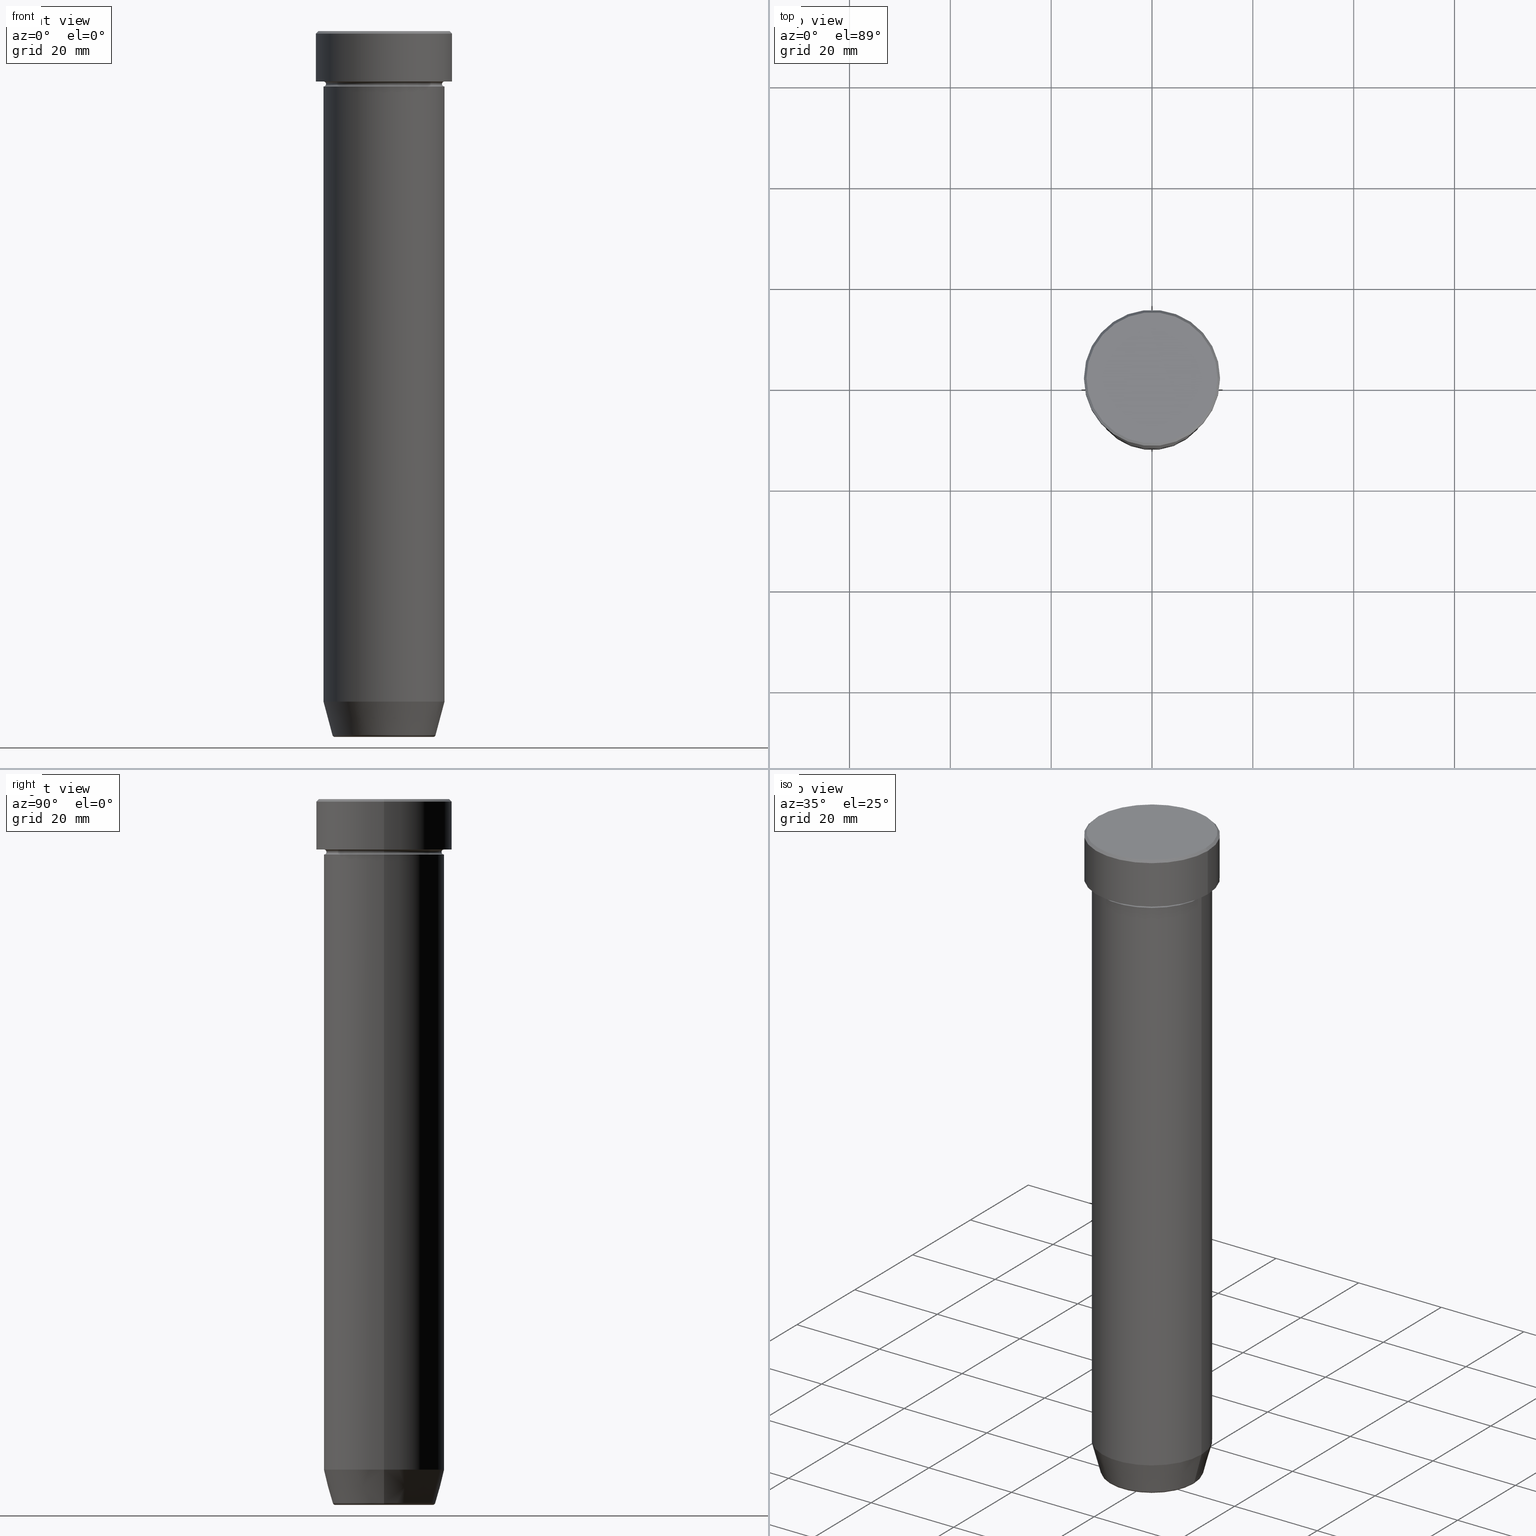
[diagram: canonical four-view strip — front | top / right | iso, engineering-drawing reading convention]
A machine part, canonical four-view strip (front | top / right | iso — engineering-drawing reading convention). The complete STEP part file that produces these views, byte-faithful:
ISO-10303-21;
HEADER;
FILE_DESCRIPTION (( 'STEP AP203' ),
    '1' );
FILE_NAME ('3ad3.STEP',
    '2024-01-02T19:19:51',
    ( '' ),
    ( '' ),
    'SwSTEP 2.0',
    'SolidWorks 2019',
    '' );
FILE_SCHEMA (( 'CONFIG_CONTROL_DESIGN' ));
ENDSEC;

DATA;
#1 = DIRECTION ( 'NONE',  ( 0.000000000000000000, -0.000000000000000000, 1.000000000000000000 ) ) ;
#2 = ORIENTED_EDGE ( 'NONE', *, *, #179, .F. ) ;
#3 = ADVANCED_FACE ( 'NONE', ( #126 ), #260, .T. ) ;
#4 = APPLICATION_PROTOCOL_DEFINITION ( 'international standard', 'config_control_design', 1994, #422 ) ;
#5 = CIRCLE ( 'NONE', #459, 11.50000000000000000 ) ;
#6 = ORIENTED_EDGE ( 'NONE', *, *, #12, .F. ) ;
#7 = APPLICATION_PROTOCOL_DEFINITION ( 'international standard', 'config_control_design', 1994, #77 ) ;
#8 = CARTESIAN_POINT ( 'NONE',  ( -12.00000000000000000, 0.000000000000000000, -9.999999999999998224 ) ) ;
#9 = VERTEX_POINT ( 'NONE', #337 ) ;
#10 = CARTESIAN_POINT ( 'NONE',  ( 12.99999999999999645, 1.592040838891558701E-15, 0.000000000000000000 ) ) ;
#11 = CARTESIAN_POINT ( 'NONE',  ( 12.99999999999999645, 1.622657008870242882E-15, 0.000000000000000000 ) ) ;
#12 = EDGE_CURVE ( 'NONE', #279, #505, #170, .T. ) ;
#13 = DATE_AND_TIME ( #342, #294 ) ;
#14 = ORIENTED_EDGE ( 'NONE', *, *, #37, .T. ) ;
#15 = DIRECTION ( 'NONE',  ( -1.000000000000000000, 0.000000000000000000, -0.000000000000000000 ) ) ;
#16 = CIRCLE ( 'NONE', #142, 13.50000000000000000 ) ;
#17 = EDGE_LOOP ( 'NONE', ( #429, #203, #124, #2 ) ) ;
#18 = DIRECTION ( 'NONE',  ( -0.000000000000000000, -0.000000000000000000, 1.000000000000000000 ) ) ;
#19 = DATE_TIME_ROLE ( 'creation_date' ) ;
#20 = CARTESIAN_POINT ( 'NONE',  ( 0.000000000000000000, 0.000000000000000000, -10.49999999999999822 ) ) ;
#21 = ORIENTED_EDGE ( 'NONE', *, *, #202, .F. ) ;
#22 = EDGE_LOOP ( 'NONE', ( #526, #316, #283, #530 ) ) ;
#23 = EDGE_CURVE ( 'NONE', #424, #444, #357, .T. ) ;
#24 = FACE_OUTER_BOUND ( 'NONE', #291, .T. ) ;
#25 = EDGE_LOOP ( 'NONE', ( #368, #207, #465, #139 ) ) ;
#26 = AXIS2_PLACEMENT_3D ( 'NONE', #81, #308, #402 ) ;
#27 = CC_DESIGN_APPROVAL ( #524, ( #513 ) ) ;
#28 = DATE_AND_TIME ( #571, #212 ) ;
#29 = ORIENTED_EDGE ( 'NONE', *, *, #202, .T. ) ;
#30 = ADVANCED_FACE ( 'NONE', ( #493 ), #276, .T. ) ;
#31 = DIRECTION ( 'NONE',  ( 1.000000000000000000, 0.000000000000000000, 0.000000000000000000 ) ) ;
#32 = DIRECTION ( 'NONE',  ( -0.000000000000000000, -0.000000000000000000, 1.000000000000000000 ) ) ;
#33 = AXIS2_PLACEMENT_3D ( 'NONE', #351, #350, #306 ) ;
#34 = CC_DESIGN_SECURITY_CLASSIFICATION ( #257, ( #513 ) ) ;
#35 = DIRECTION ( 'NONE',  ( 0.000000000000000000, -0.000000000000000000, 1.000000000000000000 ) ) ;
#36 =( NAMED_UNIT ( * ) SI_UNIT ( $, .STERADIAN. ) SOLID_ANGLE_UNIT ( ) );
#37 = EDGE_CURVE ( 'NONE', #151, #413, #534, .T. ) ;
#38 = DIRECTION ( 'NONE',  ( -1.000000000000000000, 0.000000000000000000, 0.000000000000000000 ) ) ;
#39 = CIRCLE ( 'NONE', #410, 0.5000000000000004441 ) ;
#40 = UNCERTAINTY_MEASURE_WITH_UNIT (LENGTH_MEASURE( 1.000000000000000082E-05 ), #228, 'distance_accuracy_value', 'NONE');
#41 = FACE_OUTER_BOUND ( 'NONE', #517, .T. ) ;
#42 = ADVANCED_FACE ( 'NONE', ( #307 ), #498, .T. ) ;
#43 = EDGE_LOOP ( 'NONE', ( #14, #463, #430, #560 ) ) ;
#44 = CARTESIAN_POINT ( 'NONE',  ( -12.00000000000000000, 1.469576158976823947E-15, 0.000000000000000000 ) ) ;
#45 = APPROVAL_STATUS ( 'not_yet_approved' ) ;
#46 = CC_DESIGN_DATE_AND_TIME_ASSIGNMENT ( #28, #19, ( #366 ) ) ;
#47 = ORIENTED_EDGE ( 'NONE', *, *, #340, .T. ) ;
#48 = MECHANICAL_CONTEXT ( 'NONE', #77, 'mechanical' ) ;
#49 = AXIS2_PLACEMENT_3D ( 'NONE', #400, #592, #181 ) ;
#50 = CARTESIAN_POINT ( 'NONE',  ( -12.00000000000000000, 1.469576158976823947E-15, -11.00000000000000000 ) ) ;
#51 = CIRCLE ( 'NONE', #94, 10.22365507213718416 ) ;
#52 = ORIENTED_EDGE ( 'NONE', *, *, #233, .F. ) ;
#53 = DIRECTION ( 'NONE',  ( -0.000000000000000000, -0.000000000000000000, 1.000000000000000000 ) ) ;
#54 = DIRECTION ( 'NONE',  ( -0.000000000000000000, -0.000000000000000000, 1.000000000000000000 ) ) ;
#55 = EDGE_LOOP ( 'NONE', ( #390, #328 ) ) ;
#56 = ADVANCED_FACE ( 'NONE', ( #92 ), #83, .T. ) ;
#57 = CARTESIAN_POINT ( 'NONE',  ( -9.740692158992656502, 1.222463696683474604E-15, -140.0000000000000000 ) ) ;
#58 = VERTEX_POINT ( 'NONE', #397 ) ;
#59 = DIRECTION ( 'NONE',  ( 0.000000000000000000, 0.000000000000000000, -1.000000000000000000 ) ) ;
#60 = CARTESIAN_POINT ( 'NONE',  ( 12.00000000000000000, 0.000000000000000000, 0.000000000000000000 ) ) ;
#61 = VECTOR ( 'NONE', #486, 1000.000000000000000 ) ;
#62 = DIRECTION ( 'NONE',  ( -1.000000000000000000, 0.000000000000000000, 0.000000000000000000 ) ) ;
#63 = ORIENTED_EDGE ( 'NONE', *, *, #297, .T. ) ;
#64 = PERSON_AND_ORGANIZATION_ROLE ( 'creator' ) ;
#65 = DATE_TIME_ROLE ( 'classification_date' ) ;
#66 = EDGE_CURVE ( 'NONE', #381, #58, #269, .T. ) ;
#67 = CARTESIAN_POINT ( 'NONE',  ( 0.000000000000000000, 0.000000000000000000, -9.999999999999998224 ) ) ;
#68 = ORIENTED_EDGE ( 'NONE', *, *, #111, .F. ) ;
#69 = EDGE_LOOP ( 'NONE', ( #533, #341 ) ) ;
#70 = PRODUCT_RELATED_PRODUCT_CATEGORY ( 'detail', '', ( #442 ) ) ;
#71 = ORIENTED_EDGE ( 'NONE', *, *, #428, .F. ) ;
#72 = AXIS2_PLACEMENT_3D ( 'NONE', #131, #133, #75 ) ;
#73 = AXIS2_PLACEMENT_3D ( 'NONE', #483, #220, #392 ) ;
#74 = ADVANCED_FACE ( 'NONE', ( #374 ), #522, .F. ) ;
#75 = DIRECTION ( 'NONE',  ( 1.000000000000000000, 0.000000000000000000, 0.000000000000000000 ) ) ;
#76 = ORIENTED_EDGE ( 'NONE', *, *, #297, .F. ) ;
#77 = APPLICATION_CONTEXT ( 'configuration controlled 3d designs of mechanical parts and assemblies' ) ;
#78 = DIRECTION ( 'NONE',  ( -1.000000000000000000, 0.000000000000000000, 0.000000000000000000 ) ) ;
#79 = FACE_OUTER_BOUND ( 'NONE', #169, .T. ) ;
#80 = DIRECTION ( 'NONE',  ( -0.000000000000000000, -0.000000000000000000, 1.000000000000000000 ) ) ;
#81 = CARTESIAN_POINT ( 'NONE',  ( 0.000000000000000000, 0.000000000000000000, -11.00000000000000000 ) ) ;
#82 = PLANE ( 'NONE',  #256 ) ;
#83 = CYLINDRICAL_SURFACE ( 'NONE', #584, 12.00000000000000000 ) ;
#84 = AXIS2_PLACEMENT_3D ( 'NONE', #247, #168, #295 ) ;
#85 = FACE_OUTER_BOUND ( 'NONE', #147, .T. ) ;
#86 = CARTESIAN_POINT ( 'NONE',  ( 12.00000000000000000, 0.000000000000000000, -11.00000000000000000 ) ) ;
#87 = DIRECTION ( 'NONE',  ( 1.000000000000000000, 0.000000000000000000, 0.000000000000000000 ) ) ;
#88 = EDGE_CURVE ( 'NONE', #477, #490, #354, .T. ) ;
#89 = CARTESIAN_POINT ( 'NONE',  ( 0.000000000000000000, 0.000000000000000000, -10.00000000000000000 ) ) ;
#90 = CARTESIAN_POINT ( 'NONE',  ( 12.00000000000000000, 1.469576158976823947E-15, -9.999999999999998224 ) ) ;
#91 = CARTESIAN_POINT ( 'NONE',  ( 0.000000000000000000, 0.000000000000000000, -27.00000000000000000 ) ) ;
#92 = FACE_OUTER_BOUND ( 'NONE', #376, .T. ) ;
#93 = AXIS2_PLACEMENT_3D ( 'NONE', #226, #561, #325 ) ;
#94 = AXIS2_PLACEMENT_3D ( 'NONE', #137, #54, #278 ) ;
#95 = CARTESIAN_POINT ( 'NONE',  ( -13.50000000000000000, 1.653273178848926867E-15, -0.5000000000000091038 ) ) ;
#96 = DIRECTION ( 'NONE',  ( 1.000000000000000000, 0.000000000000000000, 0.000000000000000000 ) ) ;
#97 = VERTEX_POINT ( 'NONE', #86 ) ;
#98 = CC_DESIGN_DATE_AND_TIME_ASSIGNMENT ( #13, #65, ( #257 ) ) ;
#99 = LINE ( 'NONE', #188, #387 ) ;
#100 = ORIENTED_EDGE ( 'NONE', *, *, #595, .T. ) ;
#101 = DATE_AND_TIME ( #315, #311 ) ;
#102 = ORIENTED_EDGE ( 'NONE', *, *, #319, .T. ) ;
#103 = AXIS2_PLACEMENT_3D ( 'NONE', #448, #177, #398 ) ;
#104 = CIRCLE ( 'NONE', #248, 12.00000000000000000 ) ;
#105 = ORIENTED_EDGE ( 'NONE', *, *, #496, .T. ) ;
#106 = ADVANCED_FACE ( 'NONE', ( #304 ), #173, .F. ) ;
#107 = CARTESIAN_POINT ( 'NONE',  ( 0.000000000000000000, 0.000000000000000000, -140.0000000000000000 ) ) ;
#108 = CARTESIAN_POINT ( 'NONE',  ( 12.00000000000000000, 0.000000000000000000, -133.0000000000000000 ) ) ;
#109 = VERTEX_POINT ( 'NONE', #262 ) ;
#110 = LINE ( 'NONE', #10, #356 ) ;
#111 = EDGE_CURVE ( 'NONE', #253, #279, #245, .T. ) ;
#112 = EDGE_LOOP ( 'NONE', ( #63, #194 ) ) ;
#113 = DIRECTION ( 'NONE',  ( -0.7071067811865439090, 0.000000000000000000, -0.7071067811865512365 ) ) ;
#114 = CARTESIAN_POINT ( 'NONE',  ( 12.00000000000000000, 0.000000000000000000, -27.00000000000000000 ) ) ;
#115 = EDGE_CURVE ( 'NONE', #97, #490, #134, .T. ) ;
#116 = AXIS2_PLACEMENT_3D ( 'NONE', #518, #140, #461 ) ;
#117 = APPROVAL_STATUS ( 'not_yet_approved' ) ;
#118 = CONICAL_SURFACE ( 'NONE', #84, 12.99999999999999645, 0.7853981633974431720 ) ;
#119 = SECURITY_CLASSIFICATION_LEVEL ( 'unclassified' ) ;
#120 = DIRECTION ( 'NONE',  ( 0.000000000000000000, 0.000000000000000000, -1.000000000000000000 ) ) ;
#121 = ORIENTED_EDGE ( 'NONE', *, *, #489, .T. ) ;
#122 = DIRECTION ( 'NONE',  ( 1.000000000000000000, 0.000000000000000000, 0.000000000000000000 ) ) ;
#123 = AXIS2_PLACEMENT_3D ( 'NONE', #164, #521, #572 ) ;
#124 = ORIENTED_EDGE ( 'NONE', *, *, #37, .F. ) ;
#125 = ADVANCED_FACE ( 'NONE', ( #542, #136 ), #488, .T. ) ;
#126 = FACE_OUTER_BOUND ( 'NONE', #249, .T. ) ;
#127 = TOROIDAL_SURFACE ( 'NONE', #432, 12.00000000000000000, 0.5000000000000000000 ) ;
#128 = DIRECTION ( 'NONE',  ( -1.000000000000000000, 0.000000000000000000, 0.000000000000000000 ) ) ;
#129 = LINE ( 'NONE', #305, #61 ) ;
#130 = DIRECTION ( 'NONE',  ( 0.2588190451025214611, 0.000000000000000000, 0.9659258262890679791 ) ) ;
#131 = CARTESIAN_POINT ( 'NONE',  ( 0.000000000000000000, 0.000000000000000000, -10.00000000000000000 ) ) ;
#132 = CLOSED_SHELL ( 'NONE', ( #180, #244, #42, #407, #56, #30, #460, #313 ) ) ;
#133 = DIRECTION ( 'NONE',  ( -0.000000000000000000, -0.000000000000000000, 1.000000000000000000 ) ) ;
#134 = CIRCLE ( 'NONE', #26, 12.00000000000000000 ) ;
#135 = CC_DESIGN_APPROVAL ( #449, ( #366 ) ) ;
#136 = FACE_OUTER_BOUND ( 'NONE', #69, .T. ) ;
#137 = CARTESIAN_POINT ( 'NONE',  ( 0.000000000000000000, 0.000000000000000000, -139.6294095225512706 ) ) ;
#138 = EDGE_CURVE ( 'NONE', #253, #97, #39, .T. ) ;
#139 = ORIENTED_EDGE ( 'NONE', *, *, #469, .F. ) ;
#140 = DIRECTION ( 'NONE',  ( -0.000000000000000000, -0.000000000000000000, 1.000000000000000000 ) ) ;
#141 = CIRCLE ( 'NONE', #329, 13.50000000000000000 ) ;
#142 = AXIS2_PLACEMENT_3D ( 'NONE', #479, #544, #358 ) ;
#143 = DESIGN_CONTEXT ( 'detailed design', #422, 'design' ) ;
#144 = CIRCLE ( 'NONE', #73, 0.5000000000000004441 ) ;
#145 = CARTESIAN_POINT ( 'NONE',  ( 0.000000000000000000, 1.102182119232618227E-14, -140.0000000000000000 ) ) ;
#146 = ORIENTED_EDGE ( 'NONE', *, *, #484, .F. ) ;
#147 = EDGE_LOOP ( 'NONE', ( #455, #100, #452, #386 ) ) ;
#148 = PERSON_AND_ORGANIZATION_ROLE ( 'design_owner' ) ;
#149 = AXIS2_PLACEMENT_3D ( 'NONE', #541, #538, #353 ) ;
#150 = EDGE_CURVE ( 'NONE', #109, #9, #501, .T. ) ;
#151 = VERTEX_POINT ( 'NONE', #108 ) ;
#152 = FACE_OUTER_BOUND ( 'NONE', #17, .T. ) ;
#153 = APPROVAL_ROLE ( '' ) ;
#154 = VECTOR ( 'NONE', #130, 1000.000000000000114 ) ;
#155 = CIRCLE ( 'NONE', #588, 13.50000000000000000 ) ;
#156 = ORIENTED_EDGE ( 'NONE', *, *, #115, .F. ) ;
#157 = DIRECTION ( 'NONE',  ( -0.000000000000000000, -0.000000000000000000, 1.000000000000000000 ) ) ;
#158 = PERSON_AND_ORGANIZATION_ROLE ( 'creator' ) ;
#159 = CARTESIAN_POINT ( 'NONE',  ( -13.50000000000000000, 1.653273178848926867E-15, -10.00000000000000000 ) ) ;
#160 = PERSON_AND_ORGANIZATION ( #548, #224 ) ;
#161 = ORIENTED_EDGE ( 'NONE', *, *, #508, .F. ) ;
#162 = MANIFOLD_SOLID_BREP ( 'Zaoblit4', #132 ) ;
#163 = DIRECTION ( 'NONE',  ( 0.000000000000000000, 0.000000000000000000, -1.000000000000000000 ) ) ;
#164 = CARTESIAN_POINT ( 'NONE',  ( 0.000000000000000000, 0.000000000000000000, 0.000000000000000000 ) ) ;
#165 = COORDINATED_UNIVERSAL_TIME_OFFSET ( 1, 0, .AHEAD. ) ;
#166 = TOROIDAL_SURFACE ( 'NONE', #190, 9.740692158992656502, 0.5000000000000000000 ) ;
#167 = ORIENTED_EDGE ( 'NONE', *, *, #469, .T. ) ;
#168 = DIRECTION ( 'NONE',  ( 0.000000000000000000, 0.000000000000000000, -1.000000000000000000 ) ) ;
#169 = EDGE_LOOP ( 'NONE', ( #362, #47 ) ) ;
#170 = CIRCLE ( 'NONE', #195, 12.00000000000000000 ) ;
#171 = EDGE_CURVE ( 'NONE', #509, #275, #175, .T. ) ;
#172 = EDGE_LOOP ( 'NONE', ( #435, #569, #214, #301 ) ) ;
#173 = TOROIDAL_SURFACE ( 'NONE', #500, 12.00000000000000000, 0.5000000000000000000 ) ;
#174 = CARTESIAN_POINT ( 'NONE',  ( 0.000000000000000000, 0.000000000000000000, 0.000000000000000000 ) ) ;
#175 = CIRCLE ( 'NONE', #377, 12.00000000000000000 ) ;
#176 = CARTESIAN_POINT ( 'NONE',  ( 10.12435565298213369, 0.000000000000000000, -140.0000000000000000 ) ) ;
#177 = DIRECTION ( 'NONE',  ( 1.224646799147353207E-16, 1.000000000000000000, 0.000000000000000000 ) ) ;
#178 = DIRECTION ( 'NONE',  ( -0.000000000000000000, -0.000000000000000000, 1.000000000000000000 ) ) ;
#179 = EDGE_CURVE ( 'NONE', #58, #151, #445, .T. ) ;
#180 = ADVANCED_FACE ( 'NONE', ( #85 ), #575, .T. ) ;
#181 = DIRECTION ( 'NONE',  ( -1.000000000000000000, 0.000000000000000000, -0.000000000000000000 ) ) ;
#182 = AXIS2_PLACEMENT_3D ( 'NONE', #466, #53, #239 ) ;
#183 = CIRCLE ( 'NONE', #235, 9.740692158992656502 ) ;
#184 = DIRECTION ( 'NONE',  ( 0.000000000000000000, -1.000000000000000000, 0.000000000000000000 ) ) ;
#186 = EDGE_CURVE ( 'NONE', #580, #424, #141, .T. ) ;
#185 = DIRECTION ( 'NONE',  ( 1.000000000000000000, 0.000000000000000000, 0.000000000000000000 ) ) ;
#187 = APPROVAL_ROLE ( '' ) ;
#188 = CARTESIAN_POINT ( 'NONE',  ( 13.50000000000000000, 0.000000000000000000, 0.000000000000000000 ) ) ;
#189 = ORIENTED_EDGE ( 'NONE', *, *, #138, .T. ) ;
#190 = AXIS2_PLACEMENT_3D ( 'NONE', #543, #178, #264 ) ;
#191 = ORIENTED_EDGE ( 'NONE', *, *, #192, .F. ) ;
#192 = EDGE_CURVE ( 'NONE', #413, #275, #453, .T. ) ;
#193 = DIRECTION ( 'NONE',  ( 0.000000000000000000, 0.000000000000000000, -1.000000000000000000 ) ) ;
#194 = ORIENTED_EDGE ( 'NONE', *, *, #12, .T. ) ;
#195 = AXIS2_PLACEMENT_3D ( 'NONE', #268, #225, #38 ) ;
#196 = CARTESIAN_POINT ( 'NONE',  ( 0.000000000000000000, 12.00000000000000000, -27.00000000000000000 ) ) ;
#197 = CC_DESIGN_PERSON_AND_ORGANIZATION_ASSIGNMENT ( #503, #148, ( #442 ) ) ;
#198 = FACE_OUTER_BOUND ( 'NONE', #172, .T. ) ;
#199 = ORIENTED_EDGE ( 'NONE', *, *, #414, .F. ) ;
#200 = AXIS2_PLACEMENT_3D ( 'NONE', #282, #555, #504 ) ;
#201 = AXIS2_PLACEMENT_3D ( 'NONE', #539, #223, #437 ) ;
#202 = EDGE_CURVE ( 'NONE', #9, #490, #289, .T. ) ;
#203 = ORIENTED_EDGE ( 'NONE', *, *, #284, .T. ) ;
#204 = DIRECTION ( 'NONE',  ( 1.000000000000000000, 0.000000000000000000, 0.000000000000000000 ) ) ;
#205 = APPROVAL_DATE_TIME ( #520, #524 ) ;
#206 = DIRECTION ( 'NONE',  ( -0.000000000000000000, -0.000000000000000000, 1.000000000000000000 ) ) ;
#207 = ORIENTED_EDGE ( 'NONE', *, *, #23, .T. ) ;
#208 = CC_DESIGN_PERSON_AND_ORGANIZATION_ASSIGNMENT ( #209, #338, ( #513 ) ) ;
#209 = PERSON_AND_ORGANIZATION ( #548, #224 ) ;
#210 = ORIENTED_EDGE ( 'NONE', *, *, #150, .F. ) ;
#211 = VECTOR ( 'NONE', #280, 1000.000000000000000 ) ;
#212 = LOCAL_TIME ( 20, 19, 51.00000000000000000, #378 ) ;
#213 = DIRECTION ( 'NONE',  ( 0.000000000000000000, 0.000000000000000000, -1.000000000000000000 ) ) ;
#214 = ORIENTED_EDGE ( 'NONE', *, *, #550, .F. ) ;
#215 = ADVANCED_FACE ( 'NONE', ( #334 ), #230, .T. ) ;
#216 = ORIENTED_EDGE ( 'NONE', *, *, #218, .F. ) ;
#217 = DIRECTION ( 'NONE',  ( 1.000000000000000000, 0.000000000000000000, 0.000000000000000000 ) ) ;
#218 = EDGE_CURVE ( 'NONE', #413, #151, #246, .T. ) ;
#219 = CARTESIAN_POINT ( 'NONE',  ( -10.22365507213718416, 1.360806402472382153E-15, -139.6294095225512706 ) ) ;
#220 = DIRECTION ( 'NONE',  ( -0.000000000000000000, -1.000000000000000000, -0.000000000000000000 ) ) ;
#221 = CIRCLE ( 'NONE', #403, 12.00000000000000000 ) ;
#222 = CIRCLE ( 'NONE', #404, 9.740692158992656502 ) ;
#223 = DIRECTION ( 'NONE',  ( 1.224646799147353207E-16, 1.000000000000000000, 0.000000000000000000 ) ) ;
#224 = ORGANIZATION ( 'NEUR�EN�', 'NEUR�EN�', '' ) ;
#225 = DIRECTION ( 'NONE',  ( -0.000000000000000000, -0.000000000000000000, 1.000000000000000000 ) ) ;
#226 = CARTESIAN_POINT ( 'NONE',  ( 0.000000000000000000, 0.000000000000000000, -139.5000000000000000 ) ) ;
#227 = CARTESIAN_POINT ( 'NONE',  ( 12.00000000000000000, 0.000000000000000000, -10.49999999999999822 ) ) ;
#228 =( LENGTH_UNIT ( ) NAMED_UNIT ( * ) SI_UNIT ( .MILLI., .METRE. ) );
#229 = EDGE_LOOP ( 'NONE', ( #68, #324, #433, #6 ) ) ;
#230 = CYLINDRICAL_SURFACE ( 'NONE', #116, 13.50000000000000000 ) ;
#231 = COORDINATED_UNIVERSAL_TIME_OFFSET ( 1, 0, .AHEAD. ) ;
#232 = ORIENTED_EDGE ( 'NONE', *, *, #345, .F. ) ;
#233 = EDGE_CURVE ( 'NONE', #409, #562, #110, .T. ) ;
#234 = AXIS2_PLACEMENT_3D ( 'NONE', #145, #1, #462 ) ;
#235 = AXIS2_PLACEMENT_3D ( 'NONE', #529, #120, #122 ) ;
#236 = PERSON_AND_ORGANIZATION ( #548, #224 ) ;
#237 = DIRECTION ( 'NONE',  ( -0.000000000000000000, -0.000000000000000000, 1.000000000000000000 ) ) ;
#238 = ORIENTED_EDGE ( 'NONE', *, *, #428, .T. ) ;
#239 = DIRECTION ( 'NONE',  ( 1.000000000000000000, 0.000000000000000000, 0.000000000000000000 ) ) ;
#240 = DIRECTION ( 'NONE',  ( -1.000000000000000000, 0.000000000000000000, -0.000000000000000000 ) ) ;
#241 = CARTESIAN_POINT ( 'NONE',  ( 0.000000000000000000, 0.000000000000000000, -11.00000000000000000 ) ) ;
#242 = EDGE_LOOP ( 'NONE', ( #370, #512, #76, #482 ) ) ;
#243 = VECTOR ( 'NONE', #312, 1000.000000000000000 ) ;
#244 = ADVANCED_FACE ( 'NONE', ( #152 ), #317, .T. ) ;
#245 = CIRCLE ( 'NONE', #33, 0.5000000000000004441 ) ;
#246 = CIRCLE ( 'NONE', #182, 12.00000000000000000 ) ;
#247 = CARTESIAN_POINT ( 'NONE',  ( 0.000000000000000000, 0.000000000000000000, 0.000000000000000000 ) ) ;
#248 = AXIS2_PLACEMENT_3D ( 'NONE', #456, #237, #412 ) ;
#249 = EDGE_LOOP ( 'NONE', ( #288, #29, #156, #232 ) ) ;
#250 = DIRECTION ( 'NONE',  ( 1.000000000000000000, 0.000000000000000000, 0.000000000000000000 ) ) ;
#251 = ORIENTED_EDGE ( 'NONE', *, *, #179, .T. ) ;
#252 = DIRECTION ( 'NONE',  ( 0.000000000000000000, 0.000000000000000000, -1.000000000000000000 ) ) ;
#253 = VERTEX_POINT ( 'NONE', #570 ) ;
#254 = ADVANCED_FACE ( 'NONE', ( #259 ), #127, .F. ) ;
#255 = PERSON_AND_ORGANIZATION ( #548, #224 ) ;
#256 = AXIS2_PLACEMENT_3D ( 'NONE', #439, #35, #310 ) ;
#257 = SECURITY_CLASSIFICATION ( '', '', #119 ) ;
#258 = ORIENTED_EDGE ( 'NONE', *, *, #389, .T. ) ;
#259 = FACE_OUTER_BOUND ( 'NONE', #431, .T. ) ;
#260 = CYLINDRICAL_SURFACE ( 'NONE', #123, 12.00000000000000000 ) ;
#261 = LINE ( 'NONE', #393, #272 ) ;
#262 = CARTESIAN_POINT ( 'NONE',  ( 12.00000000000000000, 0.000000000000000000, -27.00000000000000000 ) ) ;
#263 = EDGE_CURVE ( 'NONE', #562, #444, #16, .T. ) ;
#264 = DIRECTION ( 'NONE',  ( 1.000000000000000000, 0.000000000000000000, 0.000000000000000000 ) ) ;
#265 = DIRECTION ( 'NONE',  ( 1.000000000000000000, 0.000000000000000000, 0.000000000000000000 ) ) ;
#266 = AXIS2_PLACEMENT_3D ( 'NONE', #174, #349, #537 ) ;
#267 = CARTESIAN_POINT ( 'NONE',  ( 9.740692158992656502, 0.000000000000000000, -139.5000000000000000 ) ) ;
#268 = CARTESIAN_POINT ( 'NONE',  ( 0.000000000000000000, 0.000000000000000000, -9.999999999999998224 ) ) ;
#269 = CIRCLE ( 'NONE', #467, 0.5000000000000004441 ) ;
#270 = DIRECTION ( 'NONE',  ( 1.000000000000000000, 0.000000000000000000, 0.000000000000000000 ) ) ;
#271 = CARTESIAN_POINT ( 'NONE',  ( 0.000000000000000000, 0.000000000000000000, 0.000000000000000000 ) ) ;
#272 = VECTOR ( 'NONE', #597, 1000.000000000000114 ) ;
#273 = CC_DESIGN_PERSON_AND_ORGANIZATION_ASSIGNMENT ( #476, #277, ( #257 ) ) ;
#274 = EDGE_LOOP ( 'NONE', ( #418, #102, #167, #502 ) ) ;
#275 = VERTEX_POINT ( 'NONE', #494 ) ;
#276 = CONICAL_SURFACE ( 'NONE', #352, 10.12435565298213369, 0.2617993877991502405 ) ;
#277 = PERSON_AND_ORGANIZATION_ROLE ( 'classification_officer' ) ;
#278 = DIRECTION ( 'NONE',  ( -1.000000000000000000, 0.000000000000000000, 0.000000000000000000 ) ) ;
#279 = VERTEX_POINT ( 'NONE', #90 ) ;
#280 = DIRECTION ( 'NONE',  ( -0.000000000000000000, -0.000000000000000000, 1.000000000000000000 ) ) ;
#281 = AXIS2_PLACEMENT_3D ( 'NONE', #551, #213, #62 ) ;
#282 = CARTESIAN_POINT ( 'NONE',  ( 0.000000000000000000, 0.000000000000000000, -10.49999999999999822 ) ) ;
#283 = ORIENTED_EDGE ( 'NONE', *, *, #66, .T. ) ;
#284 = EDGE_CURVE ( 'NONE', #321, #413, #261, .T. ) ;
#285 = DIRECTION ( 'NONE',  ( -1.000000000000000000, 0.000000000000000000, 0.000000000000000000 ) ) ;
#286 = CARTESIAN_POINT ( 'NONE',  ( 0.000000000000000000, 0.000000000000000000, -27.00000000000000000 ) ) ;
#287 = APPROVAL_ROLE ( '' ) ;
#288 = ORIENTED_EDGE ( 'NONE', *, *, #150, .T. ) ;
#289 = LINE ( 'NONE', #510, #211 ) ;
#290 = ADVANCED_FACE ( 'NONE', ( #360 ), #545, .T. ) ;
#291 = EDGE_LOOP ( 'NONE', ( #21, #105, #411, #336 ) ) ;
#292 = CIRCLE ( 'NONE', #302, 12.00000000000000000 ) ;
#293 = PLANE ( 'NONE',  #593 ) ;
#294 = LOCAL_TIME ( 20, 19, 51.00000000000000000, #525 ) ;
#295 = DIRECTION ( 'NONE',  ( -1.000000000000000000, 0.000000000000000000, 0.000000000000000000 ) ) ;
#296 = DIRECTION ( 'NONE',  ( 1.000000000000000000, 0.000000000000000000, 0.000000000000000000 ) ) ;
#297 = EDGE_CURVE ( 'NONE', #505, #279, #457, .T. ) ;
#298 = DIRECTION ( 'NONE',  ( -1.000000000000000000, 0.000000000000000000, 0.000000000000000000 ) ) ;
#299 = ORIENTED_EDGE ( 'NONE', *, *, #88, .F. ) ;
#300 = SHAPE_DEFINITION_REPRESENTATION ( #420, #348 ) ;
#301 = ORIENTED_EDGE ( 'NONE', *, *, #389, .F. ) ;
#302 = AXIS2_PLACEMENT_3D ( 'NONE', #241, #408, #364 ) ;
#303 = ADVANCED_FACE ( 'NONE', ( #24 ), #579, .T. ) ;
#304 = FACE_OUTER_BOUND ( 'NONE', #242, .T. ) ;
#305 = CARTESIAN_POINT ( 'NONE',  ( 12.00000000000000000, 0.000000000000000000, 0.000000000000000000 ) ) ;
#306 = DIRECTION ( 'NONE',  ( -1.000000000000000000, -1.224646799147353454E-16, 0.000000000000000000 ) ) ;
#307 = FACE_OUTER_BOUND ( 'NONE', #43, .T. ) ;
#308 = DIRECTION ( 'NONE',  ( -0.000000000000000000, -0.000000000000000000, 1.000000000000000000 ) ) ;
#309 = CIRCLE ( 'NONE', #72, 13.50000000000000000 ) ;
#310 = DIRECTION ( 'NONE',  ( 1.000000000000000000, 0.000000000000000000, 0.000000000000000000 ) ) ;
#311 = LOCAL_TIME ( 20, 19, 51.00000000000000000, #231 ) ;
#312 = DIRECTION ( 'NONE',  ( -0.000000000000000000, -0.000000000000000000, 1.000000000000000000 ) ) ;
#313 = ADVANCED_FACE ( 'NONE', ( #481 ), #166, .T. ) ;
#314 = DIRECTION ( 'NONE',  ( 1.000000000000000000, 0.000000000000000000, 0.000000000000000000 ) ) ;
#315 = CALENDAR_DATE ( 2024, 2, 1 ) ;
#316 = ORIENTED_EDGE ( 'NONE', *, *, #578, .F. ) ;
#317 = CONICAL_SURFACE ( 'NONE', #536, 10.12435565298213369, 0.2617993877991502405 ) ;
#318 = VECTOR ( 'NONE', #577, 1000.000000000000000 ) ;
#319 = EDGE_CURVE ( 'NONE', #424, #580, #309, .T. ) ;
#320 = FACE_OUTER_BOUND ( 'NONE', #55, .T. ) ;
#321 = VERTEX_POINT ( 'NONE', #219 ) ;
#322 = CARTESIAN_POINT ( 'NONE',  ( 0.000000000000000000, 0.000000000000000000, 0.000000000000000000 ) ) ;
#323 = DIRECTION ( 'NONE',  ( -0.000000000000000000, -0.000000000000000000, 1.000000000000000000 ) ) ;
#324 = ORIENTED_EDGE ( 'NONE', *, *, #508, .T. ) ;
#325 = DIRECTION ( 'NONE',  ( 1.000000000000000000, 0.000000000000000000, 0.000000000000000000 ) ) ;
#326 = AXIS2_PLACEMENT_3D ( 'NONE', #451, #589, #128 ) ;
#327 = DIRECTION ( 'NONE',  ( 1.000000000000000000, 0.000000000000000000, 0.000000000000000000 ) ) ;
#328 = ORIENTED_EDGE ( 'NONE', *, *, #558, .T. ) ;
#329 = AXIS2_PLACEMENT_3D ( 'NONE', #89, #566, #506 ) ;
#330 = CC_DESIGN_APPROVAL ( #590, ( #257 ) ) ;
#331 = LINE ( 'NONE', #60, #318 ) ;
#332 = APPROVAL_DATE_TIME ( #417, #590 ) ;
#333 = ORIENTED_EDGE ( 'NONE', *, *, #88, .T. ) ;
#334 = FACE_OUTER_BOUND ( 'NONE', #274, .T. ) ;
#335 = DIRECTION ( 'NONE',  ( -0.000000000000000000, -0.000000000000000000, 1.000000000000000000 ) ) ;
#336 = ORIENTED_EDGE ( 'NONE', *, *, #446, .F. ) ;
#337 = CARTESIAN_POINT ( 'NONE',  ( -12.00000000000000000, 1.469576158976823947E-15, -27.00000000000000000 ) ) ;
#338 = PERSON_AND_ORGANIZATION_ROLE ( 'design_supplier' ) ;
#339 = AXIS2_PLACEMENT_3D ( 'NONE', #359, #464, #96 ) ;
#340 = EDGE_CURVE ( 'NONE', #409, #582, #527, .T. ) ;
#341 = ORIENTED_EDGE ( 'NONE', *, *, #319, .F. ) ;
#342 = CALENDAR_DATE ( 2024, 2, 1 ) ;
#343 = ORIENTED_EDGE ( 'NONE', *, *, #218, .T. ) ;
#344 = ORIENTED_EDGE ( 'NONE', *, *, #519, .T. ) ;
#345 = EDGE_CURVE ( 'NONE', #109, #97, #129, .T. ) ;
#346 = CIRCLE ( 'NONE', #554, 10.22365507213718416 ) ;
#347 = APPROVAL_PERSON_ORGANIZATION ( #255, #524, #153 ) ;
#348 = ADVANCED_BREP_SHAPE_REPRESENTATION ( '3ad3', ( #559, #162, #556 ), #576 ) ;
#349 = DIRECTION ( 'NONE',  ( -0.000000000000000000, -0.000000000000000000, 1.000000000000000000 ) ) ;
#350 = DIRECTION ( 'NONE',  ( -1.224646799147353207E-16, 1.000000000000000000, 0.000000000000000000 ) ) ;
#351 = CARTESIAN_POINT ( 'NONE',  ( 12.00000000000000000, 1.469576158976823947E-15, -10.49999999999999822 ) ) ;
#352 = AXIS2_PLACEMENT_3D ( 'NONE', #443, #596, #185 ) ;
#353 = DIRECTION ( 'NONE',  ( 1.000000000000000000, 0.000000000000000000, 0.000000000000000000 ) ) ;
#354 = CIRCLE ( 'NONE', #103, 0.5000000000000004441 ) ;
#355 = ADVANCED_FACE ( 'NONE', ( #79 ), #82, .T. ) ;
#356 = VECTOR ( 'NONE', #563, 1000.000000000000000 ) ;
#357 = LINE ( 'NONE', #585, #243 ) ;
#358 = DIRECTION ( 'NONE',  ( 1.000000000000000000, 0.000000000000000000, 0.000000000000000000 ) ) ;
#359 = CARTESIAN_POINT ( 'NONE',  ( 0.000000000000000000, 0.000000000000000000, 0.000000000000000000 ) ) ;
#360 = FACE_OUTER_BOUND ( 'NONE', #495, .T. ) ;
#361 = PLANE ( 'NONE',  #425 ) ;
#362 = ORIENTED_EDGE ( 'NONE', *, *, #414, .T. ) ;
#363 = EDGE_CURVE ( 'NONE', #58, #321, #346, .T. ) ;
#364 = DIRECTION ( 'NONE',  ( 1.000000000000000000, 0.000000000000000000, 0.000000000000000000 ) ) ;
#365 = AXIS2_PLACEMENT_3D ( 'NONE', #515, #383, #296 ) ;
#366 = PRODUCT_DEFINITION ( 'NEZN�M�', '', #513, #143 ) ;
#367 = DIRECTION ( 'NONE',  ( 0.000000000000000000, 0.000000000000000000, 1.000000000000000000 ) ) ;
#368 = ORIENTED_EDGE ( 'NONE', *, *, #186, .T. ) ;
#369 = CARTESIAN_POINT ( 'NONE',  ( 0.000000000000000000, 0.000000000000000000, -10.49999999999999822 ) ) ;
#370 = ORIENTED_EDGE ( 'NONE', *, *, #484, .T. ) ;
#371 = AXIS2_PLACEMENT_3D ( 'NONE', #487, #80, #87 ) ;
#372 = DIRECTION ( 'NONE',  ( -0.000000000000000000, -0.000000000000000000, 1.000000000000000000 ) ) ;
#373 = CARTESIAN_POINT ( 'NONE',  ( 13.50000000000000000, 0.000000000000000000, -0.5000000000000091038 ) ) ;
#375 = ADVANCED_FACE ( 'NONE', ( #406 ), #382, .T. ) ;
#374 = FACE_OUTER_BOUND ( 'NONE', #229, .T. ) ;
#376 = EDGE_LOOP ( 'NONE', ( #191, #343, #344, #71 ) ) ;
#377 = AXIS2_PLACEMENT_3D ( 'NONE', #286, #401, #314 ) ;
#378 = COORDINATED_UNIVERSAL_TIME_OFFSET ( 1, 0, .AHEAD. ) ;
#379 = DIRECTION ( 'NONE',  ( 1.000000000000000000, 0.000000000000000000, 0.000000000000000000 ) ) ;
#380 = CC_DESIGN_PERSON_AND_ORGANIZATION_ASSIGNMENT ( #473, #64, ( #513 ) ) ;
#381 = VERTEX_POINT ( 'NONE', #415 ) ;
#382 = CYLINDRICAL_SURFACE ( 'NONE', #339, 13.50000000000000000 ) ;
#383 = DIRECTION ( 'NONE',  ( -0.000000000000000000, -0.000000000000000000, 1.000000000000000000 ) ) ;
#384 = CARTESIAN_POINT ( 'NONE',  ( 0.000000000000000000, 0.000000000000000000, -0.5000000000000091038 ) ) ;
#385 = EDGE_LOOP ( 'NONE', ( #210, #388 ) ) ;
#386 = ORIENTED_EDGE ( 'NONE', *, *, #66, .F. ) ;
#387 = VECTOR ( 'NONE', #323, 1000.000000000000000 ) ;
#388 = ORIENTED_EDGE ( 'NONE', *, *, #496, .F. ) ;
#389 = EDGE_CURVE ( 'NONE', #582, #444, #427, .T. ) ;
#390 = ORIENTED_EDGE ( 'NONE', *, *, #578, .T. ) ;
#391 = DIRECTION ( 'NONE',  ( -0.000000000000000000, -0.000000000000000000, 1.000000000000000000 ) ) ;
#392 = DIRECTION ( 'NONE',  ( 0.000000000000000000, 0.000000000000000000, -1.000000000000000000 ) ) ;
#393 = CARTESIAN_POINT ( 'NONE',  ( -10.12435565298213369, 1.239875974385398152E-15, -140.0000000000000000 ) ) ;
#394 = VECTOR ( 'NONE', #113, 1000.000000000000000 ) ;
#395 = CIRCLE ( 'NONE', #491, 12.99999999999999645 ) ;
#396 = CIRCLE ( 'NONE', #201, 0.5000000000000004441 ) ;
#397 = CARTESIAN_POINT ( 'NONE',  ( 10.22365507213718416, 0.000000000000000000, -139.6294095225512706 ) ) ;
#398 = DIRECTION ( 'NONE',  ( -1.000000000000000000, 1.224646799147353454E-16, 0.000000000000000000 ) ) ;
#399 = ADVANCED_FACE ( 'NONE', ( #474 ), #361, .T. ) ;
#400 = CARTESIAN_POINT ( 'NONE',  ( 0.000000000000000000, 13.50000000000000000, -9.999999999999998224 ) ) ;
#401 = DIRECTION ( 'NONE',  ( -0.000000000000000000, -0.000000000000000000, 1.000000000000000000 ) ) ;
#402 = DIRECTION ( 'NONE',  ( 1.000000000000000000, 0.000000000000000000, 0.000000000000000000 ) ) ;
#403 = AXIS2_PLACEMENT_3D ( 'NONE', #91, #335, #270 ) ;
#404 = AXIS2_PLACEMENT_3D ( 'NONE', #107, #419, #217 ) ;
#405 =( NAMED_UNIT ( * ) PLANE_ANGLE_UNIT ( ) SI_UNIT ( $, .RADIAN. ) );
#406 = FACE_OUTER_BOUND ( 'NONE', #25, .T. ) ;
#407 = ADVANCED_FACE ( 'NONE', ( #450 ), #293, .F. ) ;
#408 = DIRECTION ( 'NONE',  ( -0.000000000000000000, -0.000000000000000000, 1.000000000000000000 ) ) ;
#409 = VERTEX_POINT ( 'NONE', #11 ) ;
#410 = AXIS2_PLACEMENT_3D ( 'NONE', #227, #184, #252 ) ;
#411 = ORIENTED_EDGE ( 'NONE', *, *, #345, .T. ) ;
#412 = DIRECTION ( 'NONE',  ( 1.000000000000000000, 0.000000000000000000, 0.000000000000000000 ) ) ;
#413 = VERTEX_POINT ( 'NONE', #552 ) ;
#414 = EDGE_CURVE ( 'NONE', #582, #409, #395, .T. ) ;
#415 = CARTESIAN_POINT ( 'NONE',  ( 9.740692158992656502, 0.000000000000000000, -140.0000000000000000 ) ) ;
#416 = PLANE ( 'NONE',  #234 ) ;
#417 = DATE_AND_TIME ( #423, #426 ) ;
#418 = ORIENTED_EDGE ( 'NONE', *, *, #23, .F. ) ;
#419 = DIRECTION ( 'NONE',  ( 0.000000000000000000, 0.000000000000000000, -1.000000000000000000 ) ) ;
#420 = PRODUCT_DEFINITION_SHAPE ( 'NONE', 'NONE',  #366 ) ;
#421 = CARTESIAN_POINT ( 'NONE',  ( 0.000000000000000000, 0.000000000000000000, 0.000000000000000000 ) ) ;
#422 = APPLICATION_CONTEXT ( 'configuration controlled 3d designs of mechanical parts and assemblies' ) ;
#423 = CALENDAR_DATE ( 2024, 2, 1 ) ;
#424 = VERTEX_POINT ( 'NONE', #159 ) ;
#425 = AXIS2_PLACEMENT_3D ( 'NONE', #196, #163, #15 ) ;
#426 = LOCAL_TIME ( 20, 19, 51.00000000000000000, #532 ) ;
#427 = LINE ( 'NONE', #497, #394 ) ;
#428 = EDGE_CURVE ( 'NONE', #275, #509, #221, .T. ) ;
#429 = ORIENTED_EDGE ( 'NONE', *, *, #363, .T. ) ;
#430 = ORIENTED_EDGE ( 'NONE', *, *, #171, .F. ) ;
#431 = EDGE_LOOP ( 'NONE', ( #299, #161, #189, #470 ) ) ;
#432 = AXIS2_PLACEMENT_3D ( 'NONE', #523, #391, #436 ) ;
#433 = ORIENTED_EDGE ( 'NONE', *, *, #586, .T. ) ;
#434 = DIRECTION ( 'NONE',  ( -0.000000000000000000, -0.000000000000000000, 1.000000000000000000 ) ) ;
#435 = ORIENTED_EDGE ( 'NONE', *, *, #340, .F. ) ;
#436 = DIRECTION ( 'NONE',  ( 1.000000000000000000, 0.000000000000000000, 0.000000000000000000 ) ) ;
#437 = DIRECTION ( 'NONE',  ( -1.000000000000000000, 1.224646799147353454E-16, 0.000000000000000000 ) ) ;
#438 = AXIS2_PLACEMENT_3D ( 'NONE', #568, #434, #31 ) ;
#439 = CARTESIAN_POINT ( 'NONE',  ( 0.000000000000000000, 0.000000000000000000, 0.000000000000000000 ) ) ;
#440 = DIRECTION ( 'NONE',  ( 0.000000000000000000, -1.000000000000000000, 0.000000000000000000 ) ) ;
#441 = ADVANCED_FACE ( 'NONE', ( #41 ), #564, .F. ) ;
#442 = PRODUCT ( '3ad3', '3ad3', '', ( #48 ) ) ;
#443 = CARTESIAN_POINT ( 'NONE',  ( 0.000000000000000000, 0.000000000000000000, -140.0000000000000000 ) ) ;
#444 = VERTEX_POINT ( 'NONE', #95 ) ;
#445 = LINE ( 'NONE', #176, #154 ) ;
#446 = EDGE_CURVE ( 'NONE', #490, #97, #292, .T. ) ;
#447 = CIRCLE ( 'NONE', #200, 11.50000000000000000 ) ;
#448 = CARTESIAN_POINT ( 'NONE',  ( -12.00000000000000000, 1.469576158976823947E-15, -10.49999999999999822 ) ) ;
#449 = APPROVAL ( #45, 'NEUR�EN�' ) ;
#450 = FACE_OUTER_BOUND ( 'NONE', #557, .T. ) ;
#451 = CARTESIAN_POINT ( 'NONE',  ( 0.000000000000000000, 0.000000000000000000, -10.49999999999999822 ) ) ;
#452 = ORIENTED_EDGE ( 'NONE', *, *, #363, .F. ) ;
#453 = LINE ( 'NONE', #44, #587 ) ;
#454 = PERSON_AND_ORGANIZATION ( #548, #224 ) ;
#455 = ORIENTED_EDGE ( 'NONE', *, *, #558, .F. ) ;
#456 = CARTESIAN_POINT ( 'NONE',  ( 0.000000000000000000, 0.000000000000000000, -27.00000000000000000 ) ) ;
#457 = CIRCLE ( 'NONE', #471, 12.00000000000000000 ) ;
#458 = ORIENTED_EDGE ( 'NONE', *, *, #446, .T. ) ;
#459 = AXIS2_PLACEMENT_3D ( 'NONE', #369, #511, #250 ) ;
#460 = ADVANCED_FACE ( 'NONE', ( #320 ), #416, .F. ) ;
#461 = DIRECTION ( 'NONE',  ( 1.000000000000000000, 0.000000000000000000, 0.000000000000000000 ) ) ;
#462 = DIRECTION ( 'NONE',  ( 1.000000000000000000, 0.000000000000000000, 0.000000000000000000 ) ) ;
#463 = ORIENTED_EDGE ( 'NONE', *, *, #192, .T. ) ;
#464 = DIRECTION ( 'NONE',  ( -0.000000000000000000, -0.000000000000000000, 1.000000000000000000 ) ) ;
#465 = ORIENTED_EDGE ( 'NONE', *, *, #550, .T. ) ;
#466 = CARTESIAN_POINT ( 'NONE',  ( 0.000000000000000000, 0.000000000000000000, -133.0000000000000000 ) ) ;
#467 = AXIS2_PLACEMENT_3D ( 'NONE', #267, #440, #193 ) ;
#468 = CARTESIAN_POINT ( 'NONE',  ( 0.000000000000000000, 0.000000000000000000, -27.00000000000000000 ) ) ;
#469 = EDGE_CURVE ( 'NONE', #580, #562, #99, .T. ) ;
#470 = ORIENTED_EDGE ( 'NONE', *, *, #115, .T. ) ;
#471 = AXIS2_PLACEMENT_3D ( 'NONE', #67, #516, #298 ) ;
#472 = APPROVAL_PERSON_ORGANIZATION ( #160, #590, #287 ) ;
#473 = PERSON_AND_ORGANIZATION ( #548, #224 ) ;
#474 = FACE_OUTER_BOUND ( 'NONE', #385, .T. ) ;
#475 = ORIENTED_EDGE ( 'NONE', *, *, #284, .F. ) ;
#476 = PERSON_AND_ORGANIZATION ( #548, #224 ) ;
#477 = VERTEX_POINT ( 'NONE', #507 ) ;
#478 = EDGE_LOOP ( 'NONE', ( #475, #121, #251, #216 ) ) ;
#479 = CARTESIAN_POINT ( 'NONE',  ( 0.000000000000000000, 0.000000000000000000, -0.5000000000000091038 ) ) ;
#480 = AXIS2_PLACEMENT_3D ( 'NONE', #20, #206, #327 ) ;
#481 = FACE_OUTER_BOUND ( 'NONE', #22, .T. ) ;
#482 = ORIENTED_EDGE ( 'NONE', *, *, #586, .F. ) ;
#483 = CARTESIAN_POINT ( 'NONE',  ( -12.00000000000000000, 0.000000000000000000, -10.49999999999999822 ) ) ;
#484 = EDGE_CURVE ( 'NONE', #477, #253, #447, .T. ) ;
#485 = DIRECTION ( 'NONE',  ( 0.000000000000000000, 0.000000000000000000, -1.000000000000000000 ) ) ;
#486 = DIRECTION ( 'NONE',  ( -0.000000000000000000, -0.000000000000000000, 1.000000000000000000 ) ) ;
#487 = CARTESIAN_POINT ( 'NONE',  ( 0.000000000000000000, 0.000000000000000000, 0.000000000000000000 ) ) ;
#488 = PLANE ( 'NONE',  #49 ) ;
#489 = EDGE_CURVE ( 'NONE', #321, #58, #51, .T. ) ;
#490 = VERTEX_POINT ( 'NONE', #50 ) ;
#491 = AXIS2_PLACEMENT_3D ( 'NONE', #421, #372, #379 ) ;
#492 = CARTESIAN_POINT ( 'NONE',  ( 0.000000000000000000, 0.000000000000000000, -139.6294095225512706 ) ) ;
#493 = FACE_OUTER_BOUND ( 'NONE', #478, .T. ) ;
#494 = CARTESIAN_POINT ( 'NONE',  ( -12.00000000000000000, 1.469576158976823947E-15, -27.00000000000000000 ) ) ;
#495 = EDGE_LOOP ( 'NONE', ( #52, #199, #258, #565 ) ) ;
#496 = EDGE_CURVE ( 'NONE', #9, #109, #104, .T. ) ;
#497 = CARTESIAN_POINT ( 'NONE',  ( -12.99999999999999645, 0.000000000000000000, 0.000000000000000000 ) ) ;
#498 = CYLINDRICAL_SURFACE ( 'NONE', #371, 12.00000000000000000 ) ;
#499 = APPROVAL_DATE_TIME ( #101, #449 ) ;
#500 = AXIS2_PLACEMENT_3D ( 'NONE', #547, #485, #78 ) ;
#501 = CIRCLE ( 'NONE', #365, 12.00000000000000000 ) ;
#502 = ORIENTED_EDGE ( 'NONE', *, *, #263, .T. ) ;
#503 = PERSON_AND_ORGANIZATION ( #548, #224 ) ;
#504 = DIRECTION ( 'NONE',  ( 1.000000000000000000, 0.000000000000000000, 0.000000000000000000 ) ) ;
#505 = VERTEX_POINT ( 'NONE', #8 ) ;
#506 = DIRECTION ( 'NONE',  ( 1.000000000000000000, 0.000000000000000000, 0.000000000000000000 ) ) ;
#507 = CARTESIAN_POINT ( 'NONE',  ( -11.50000000000000000, 1.438959988998139963E-15, -10.49999999999999822 ) ) ;
#508 = EDGE_CURVE ( 'NONE', #253, #477, #5, .T. ) ;
#509 = VERTEX_POINT ( 'NONE', #114 ) ;
#510 = CARTESIAN_POINT ( 'NONE',  ( -12.00000000000000000, 1.469576158976823947E-15, 0.000000000000000000 ) ) ;
#511 = DIRECTION ( 'NONE',  ( -0.000000000000000000, -0.000000000000000000, 1.000000000000000000 ) ) ;
#512 = ORIENTED_EDGE ( 'NONE', *, *, #111, .T. ) ;
#513 = PRODUCT_DEFINITION_FORMATION_WITH_SPECIFIED_SOURCE ( 'LIBOVOLN�', '', #442, .NOT_KNOWN. ) ;
#514 = CARTESIAN_POINT ( 'NONE',  ( 0.000000000000000000, 0.000000000000000000, -140.0000000000000000 ) ) ;
#515 = CARTESIAN_POINT ( 'NONE',  ( 0.000000000000000000, 0.000000000000000000, -27.00000000000000000 ) ) ;
#516 = DIRECTION ( 'NONE',  ( -0.000000000000000000, -0.000000000000000000, 1.000000000000000000 ) ) ;
#517 = EDGE_LOOP ( 'NONE', ( #146, #333, #458, #574 ) ) ;
#518 = CARTESIAN_POINT ( 'NONE',  ( 0.000000000000000000, 0.000000000000000000, 0.000000000000000000 ) ) ;
#519 = EDGE_CURVE ( 'NONE', #151, #509, #331, .T. ) ;
#520 = DATE_AND_TIME ( #567, #546 ) ;
#521 = DIRECTION ( 'NONE',  ( -0.000000000000000000, -0.000000000000000000, 1.000000000000000000 ) ) ;
#522 = TOROIDAL_SURFACE ( 'NONE', #326, 12.00000000000000000, 0.5000000000000000000 ) ;
#523 = CARTESIAN_POINT ( 'NONE',  ( 0.000000000000000000, 0.000000000000000000, -10.49999999999999822 ) ) ;
#524 = APPROVAL ( #528, 'NEUR�EN�' ) ;
#525 = COORDINATED_UNIVERSAL_TIME_OFFSET ( 1, 0, .AHEAD. ) ;
#526 = ORIENTED_EDGE ( 'NONE', *, *, #595, .F. ) ;
#527 = CIRCLE ( 'NONE', #266, 12.99999999999999645 ) ;
#528 = APPROVAL_STATUS ( 'not_yet_approved' ) ;
#529 = CARTESIAN_POINT ( 'NONE',  ( 0.000000000000000000, 0.000000000000000000, -140.0000000000000000 ) ) ;
#530 = ORIENTED_EDGE ( 'NONE', *, *, #489, .F. ) ;
#531 = DIRECTION ( 'NONE',  ( 0.000000000000000000, 0.000000000000000000, -1.000000000000000000 ) ) ;
#532 = COORDINATED_UNIVERSAL_TIME_OFFSET ( 1, 0, .AHEAD. ) ;
#533 = ORIENTED_EDGE ( 'NONE', *, *, #186, .F. ) ;
#534 = CIRCLE ( 'NONE', #149, 12.00000000000000000 ) ;
#535 = VERTEX_POINT ( 'NONE', #57 ) ;
#536 = AXIS2_PLACEMENT_3D ( 'NONE', #514, #18, #204 ) ;
#537 = DIRECTION ( 'NONE',  ( 1.000000000000000000, 0.000000000000000000, 0.000000000000000000 ) ) ;
#538 = DIRECTION ( 'NONE',  ( -0.000000000000000000, -0.000000000000000000, 1.000000000000000000 ) ) ;
#539 = CARTESIAN_POINT ( 'NONE',  ( -9.740692158992656502, 1.192890747399007864E-15, -139.5000000000000000 ) ) ;
#540 = ADVANCED_FACE ( 'NONE', ( #198 ), #118, .T. ) ;
#541 = CARTESIAN_POINT ( 'NONE',  ( 0.000000000000000000, 0.000000000000000000, -133.0000000000000000 ) ) ;
#542 = FACE_BOUND ( 'NONE', #112, .T. ) ;
#543 = CARTESIAN_POINT ( 'NONE',  ( 0.000000000000000000, 0.000000000000000000, -139.5000000000000000 ) ) ;
#544 = DIRECTION ( 'NONE',  ( 0.000000000000000000, 0.000000000000000000, -1.000000000000000000 ) ) ;
#545 = CONICAL_SURFACE ( 'NONE', #281, 12.99999999999999645, 0.7853981633974431720 ) ;
#546 = LOCAL_TIME ( 20, 19, 51.00000000000000000, #165 ) ;
#547 = CARTESIAN_POINT ( 'NONE',  ( 0.000000000000000000, 0.000000000000000000, -10.49999999999999822 ) ) ;
#548 = PERSON ( 'NEUR�EN�', 'NEUR�EN�', 'NEUR�EN�', ('NEUR�EN�'), ('NEUR�EN�'), ('NEUR�EN�') ) ;
#549 = DIRECTION ( 'NONE',  ( -0.000000000000000000, -0.000000000000000000, 1.000000000000000000 ) ) ;
#550 = EDGE_CURVE ( 'NONE', #444, #562, #155, .T. ) ;
#551 = CARTESIAN_POINT ( 'NONE',  ( 0.000000000000000000, 0.000000000000000000, 0.000000000000000000 ) ) ;
#552 = CARTESIAN_POINT ( 'NONE',  ( -12.00000000000000000, 1.469576158976823947E-15, -133.0000000000000000 ) ) ;
#553 = ORIENTED_EDGE ( 'NONE', *, *, #171, .T. ) ;
#554 = AXIS2_PLACEMENT_3D ( 'NONE', #492, #549, #285 ) ;
#555 = DIRECTION ( 'NONE',  ( -0.000000000000000000, -0.000000000000000000, 1.000000000000000000 ) ) ;
#556 = AXIS2_PLACEMENT_3D ( 'NONE', #322, #367, #598 ) ;
#557 = EDGE_LOOP ( 'NONE', ( #553, #238 ) ) ;
#558 = EDGE_CURVE ( 'NONE', #535, #381, #183, .T. ) ;
#559 = MANIFOLD_SOLID_BREP ( 'Zkosen�1', #591 ) ;
#560 = ORIENTED_EDGE ( 'NONE', *, *, #519, .F. ) ;
#561 = DIRECTION ( 'NONE',  ( -0.000000000000000000, -0.000000000000000000, 1.000000000000000000 ) ) ;
#562 = VERTEX_POINT ( 'NONE', #373 ) ;
#563 = DIRECTION ( 'NONE',  ( 0.7071067811865439090, 8.659560562354888485E-17, -0.7071067811865512365 ) ) ;
#564 = TOROIDAL_SURFACE ( 'NONE', #480, 12.00000000000000000, 0.5000000000000000000 ) ;
#565 = ORIENTED_EDGE ( 'NONE', *, *, #263, .F. ) ;
#566 = DIRECTION ( 'NONE',  ( -0.000000000000000000, -0.000000000000000000, 1.000000000000000000 ) ) ;
#567 = CALENDAR_DATE ( 2024, 2, 1 ) ;
#568 = CARTESIAN_POINT ( 'NONE',  ( 0.000000000000000000, 0.000000000000000000, 0.000000000000000000 ) ) ;
#569 = ORIENTED_EDGE ( 'NONE', *, *, #233, .T. ) ;
#570 = CARTESIAN_POINT ( 'NONE',  ( 11.50000000000000000, 0.000000000000000000, -10.49999999999999822 ) ) ;
#571 = CALENDAR_DATE ( 2024, 2, 1 ) ;
#572 = DIRECTION ( 'NONE',  ( 1.000000000000000000, 0.000000000000000000, 0.000000000000000000 ) ) ;
#573 = DIRECTION ( 'NONE',  ( 1.000000000000000000, 0.000000000000000000, 0.000000000000000000 ) ) ;
#574 = ORIENTED_EDGE ( 'NONE', *, *, #138, .F. ) ;
#575 = TOROIDAL_SURFACE ( 'NONE', #93, 9.740692158992656502, 0.5000000000000000000 ) ;
#576 =( GEOMETRIC_REPRESENTATION_CONTEXT ( 3 ) GLOBAL_UNCERTAINTY_ASSIGNED_CONTEXT ( ( #40 ) ) GLOBAL_UNIT_ASSIGNED_CONTEXT ( ( #228, #405, #36 ) ) REPRESENTATION_CONTEXT ( 'NONE', 'WORKASPACE' ) );
#577 = DIRECTION ( 'NONE',  ( -0.000000000000000000, -0.000000000000000000, 1.000000000000000000 ) ) ;
#578 = EDGE_CURVE ( 'NONE', #381, #535, #222, .T. ) ;
#579 = CYLINDRICAL_SURFACE ( 'NONE', #438, 12.00000000000000000 ) ;
#580 = VERTEX_POINT ( 'NONE', #583 ) ;
#581 = CARTESIAN_POINT ( 'NONE',  ( -12.99999999999999645, 0.000000000000000000, 0.000000000000000000 ) ) ;
#582 = VERTEX_POINT ( 'NONE', #581 ) ;
#583 = CARTESIAN_POINT ( 'NONE',  ( 13.50000000000000000, 0.000000000000000000, -10.00000000000000000 ) ) ;
#584 = AXIS2_PLACEMENT_3D ( 'NONE', #271, #32, #265 ) ;
#585 = CARTESIAN_POINT ( 'NONE',  ( -13.50000000000000000, 1.653273178848926867E-15, 0.000000000000000000 ) ) ;
#586 = EDGE_CURVE ( 'NONE', #477, #505, #144, .T. ) ;
#587 = VECTOR ( 'NONE', #157, 1000.000000000000000 ) ;
#588 = AXIS2_PLACEMENT_3D ( 'NONE', #384, #531, #573 ) ;
#589 = DIRECTION ( 'NONE',  ( 0.000000000000000000, 0.000000000000000000, -1.000000000000000000 ) ) ;
#590 = APPROVAL ( #117, 'NEUR�EN�' ) ;
#591 = CLOSED_SHELL ( 'NONE', ( #540, #106, #441, #3, #375, #399, #355, #215, #125, #303, #254, #74, #290 ) ) ;
#592 = DIRECTION ( 'NONE',  ( 0.000000000000000000, 0.000000000000000000, -1.000000000000000000 ) ) ;
#593 = AXIS2_PLACEMENT_3D ( 'NONE', #468, #59, #240 ) ;
#594 = APPROVAL_PERSON_ORGANIZATION ( #454, #449, #187 ) ;
#595 = EDGE_CURVE ( 'NONE', #535, #321, #396, .T. ) ;
#596 = DIRECTION ( 'NONE',  ( -0.000000000000000000, -0.000000000000000000, 1.000000000000000000 ) ) ;
#597 = DIRECTION ( 'NONE',  ( -0.2588190451025214611, 3.169619151431774186E-17, 0.9659258262890679791 ) ) ;
#598 = DIRECTION ( 'NONE',  ( 1.000000000000000000, 0.000000000000000000, 0.000000000000000000 ) ) ;
#599 = CC_DESIGN_PERSON_AND_ORGANIZATION_ASSIGNMENT ( #236, #158, ( #366 ) ) ;
ENDSEC;
END-ISO-10303-21;
